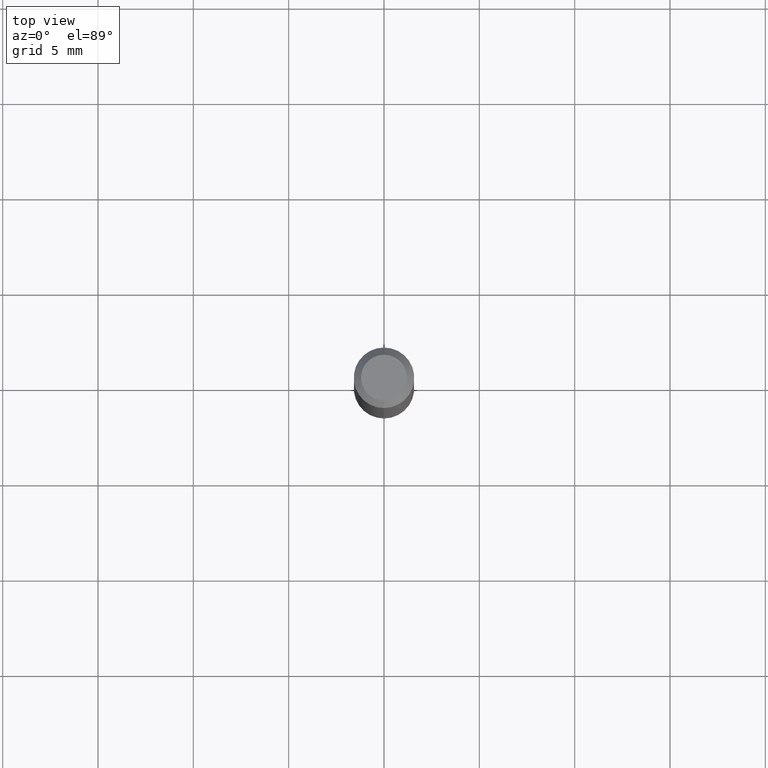
[diagram: clean part render]
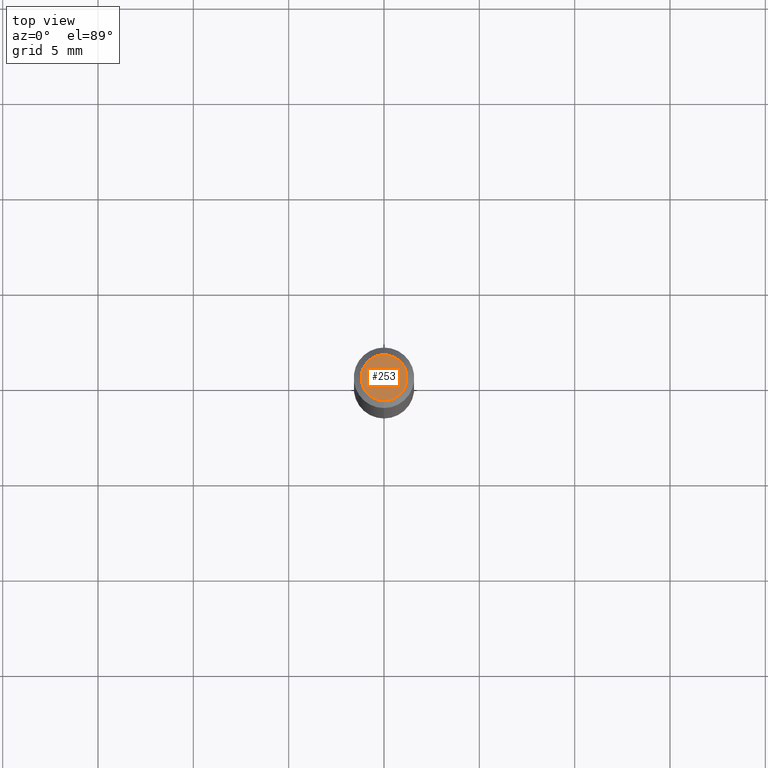
[diagram: same view with one face highlighted and labeled with its STEP entity id]
A machine part, top view. The second image highlights one B-rep face of the part: STEP entity #253.
In plain terms, the highlighted planar face has unit normal (0, -0, -1).
Its self-contained STEP definition (entity closure, byte-faithful):
#12 = PLANE ( 'NONE',  #369 ) ;
#37 = VERTEX_POINT ( 'NONE', #220 ) ;
#41 = AXIS2_PLACEMENT_3D ( 'NONE', #368, #289, #141 ) ;
#48 = CIRCLE ( 'NONE', #41, 0.04749999999999999362 ) ;
#53 = CIRCLE ( 'NONE', #357, 0.04749999999999999362 ) ;
#56 = CARTESIAN_POINT ( 'NONE',  ( 3.316907271900976096E-16, 0.04749999999999999362, -1.702759827934301371E-16 ) ) ;
#92 = CARTESIAN_POINT ( 'NONE',  ( 2.166526859903036490E-46, -3.093260389050401256E-32, -8.859400786900723789E-18 ) ) ;
#97 = DIRECTION ( 'NONE',  ( 2.445455298857690266E-29, -3.491500682104837791E-15, -1.000000000000000000 ) ) ;
#101 = VERTEX_POINT ( 'NONE', #221 ) ;
#117 = FACE_OUTER_BOUND ( 'NONE', #345, .T. ) ;
#141 = DIRECTION ( 'NONE',  ( -6.982962677686266711E-15, -1.000000000000000000, 3.491500682104838580E-15 ) ) ;
#154 = EDGE_CURVE ( 'NONE', #101, #37, #53, .T. ) ;
#181 = DIRECTION ( 'NONE',  ( -6.982962677686266711E-15, -1.000000000000000000, 3.491500682104838580E-15 ) ) ;
#220 = CARTESIAN_POINT ( 'NONE',  ( 3.840629472727447874E-16, 0.04749999999999999362, -1.747056831868805383E-16 ) ) ;
#221 = CARTESIAN_POINT ( 'NONE',  ( -3.773273898774340269E-16, -0.04749999999999999362, 1.569868816130790568E-16 ) ) ;
#253 = ADVANCED_FACE ( 'NONE', ( #117 ), #12, .F. ) ;
#274 = ORIENTED_EDGE ( 'NONE', *, *, #439, .T. ) ;
#289 = DIRECTION ( 'NONE',  ( -2.445455298857690546E-29, 3.491500682104837791E-15, 1.000000000000000000 ) ) ;
#345 = EDGE_LOOP ( 'NONE', ( #274, #404 ) ) ;
#357 = AXIS2_PLACEMENT_3D ( 'NONE', #92, #403, #181 ) ;
#368 = CARTESIAN_POINT ( 'NONE',  ( 2.166526859903036490E-46, -3.093260389050401256E-32, -8.859400786900723789E-18 ) ) ;
#369 = AXIS2_PLACEMENT_3D ( 'NONE', #56, #97, #437 ) ;
#403 = DIRECTION ( 'NONE',  ( -2.445455298857690546E-29, 3.491500682104837791E-15, 1.000000000000000000 ) ) ;
#404 = ORIENTED_EDGE ( 'NONE', *, *, #154, .T. ) ;
#437 = DIRECTION ( 'NONE',  ( 6.982962677686265922E-15, 1.000000000000000000, -3.491500682104837791E-15 ) ) ;
#439 = EDGE_CURVE ( 'NONE', #37, #101, #48, .T. ) ;